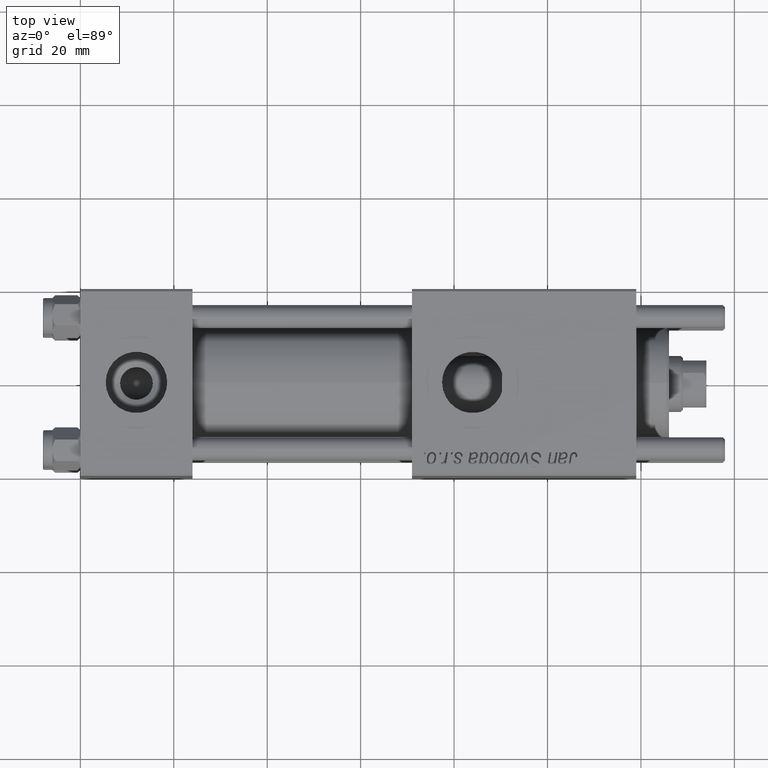
[diagram: clean part render]
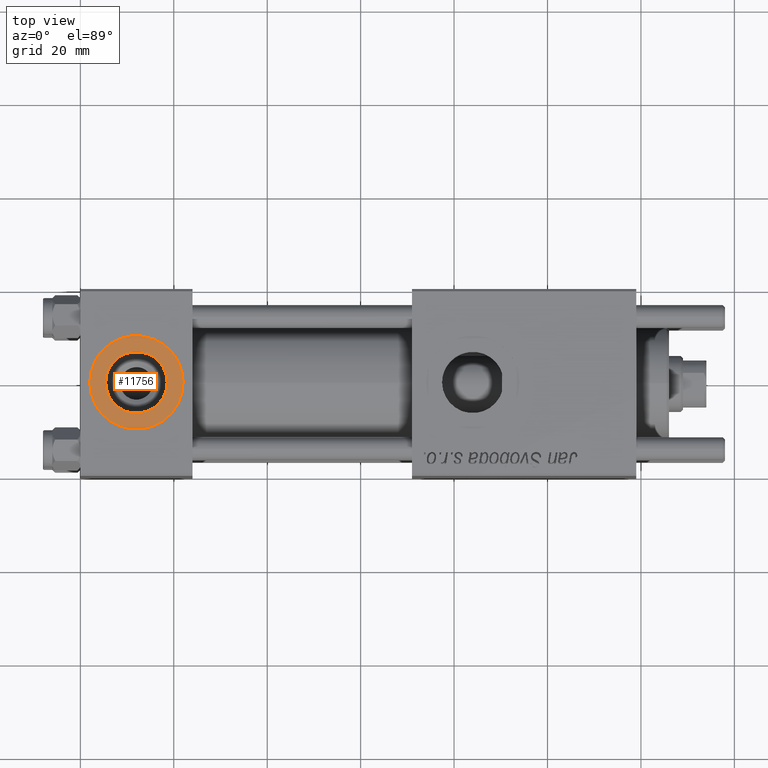
[diagram: same view with one face highlighted and labeled with its STEP entity id]
A machine part, top view. The second image highlights one B-rep face of the part: STEP entity #11756.
In plain terms, the highlighted planar face has unit normal (0, 0, 1).
Its self-contained STEP definition (entity closure, byte-faithful):
#418 = EDGE_CURVE ( 'NONE', #38565, #19439, #50567, .T. ) ;
#2024 = FACE_BOUND ( 'NONE', #30368, .T. ) ;
#3147 = EDGE_CURVE ( 'NONE', #31071, #15964, #41618, .T. ) ;
#5472 = EDGE_CURVE ( 'NONE', #19439, #38565, #48412, .T. ) ;
#5771 = CARTESIAN_POINT ( 'NONE',  ( 12.00000000000000000, 1.540743955509788682E-30, 19.79999999999999716 ) ) ;
#6056 = DIRECTION ( 'NONE',  ( 1.000000000000000000, 0.000000000000000000, -0.000000000000000000 ) ) ;
#8679 = CARTESIAN_POINT ( 'NONE',  ( 12.00000000000000000, 1.540743955509788682E-30, 19.79999999999999716 ) ) ;
#9592 = CIRCLE ( 'NONE', #12337, 6.579999999999999183 ) ;
#9893 = DIRECTION ( 'NONE',  ( 0.000000000000000000, 0.000000000000000000, 1.000000000000000000 ) ) ;
#10640 = CARTESIAN_POINT ( 'NONE',  ( 5.420000000000000817, 8.058175938389596335E-16, 19.79999999999999716 ) ) ;
#11756 = ADVANCED_FACE ( 'NONE', ( #2024, #45056 ), #27560, .T. ) ;
#12337 = AXIS2_PLACEMENT_3D ( 'NONE', #44623, #27404, #49213 ) ;
#14180 = AXIS2_PLACEMENT_3D ( 'NONE', #24216, #9893, #41415 ) ;
#15964 = VERTEX_POINT ( 'NONE', #10640 ) ;
#16230 = ORIENTED_EDGE ( 'NONE', *, *, #3147, .F. ) ;
#19439 = VERTEX_POINT ( 'NONE', #21807 ) ;
#19900 = CARTESIAN_POINT ( 'NONE',  ( 18.57999999999999829, 1.540743955509788682E-30, 19.79999999999999716 ) ) ;
#21807 = CARTESIAN_POINT ( 'NONE',  ( 2.000000000000003553, 1.224646799147354440E-15, 19.79999999999999716 ) ) ;
#21848 = DIRECTION ( 'NONE',  ( 0.000000000000000000, 0.000000000000000000, 1.000000000000000000 ) ) ;
#24216 = CARTESIAN_POINT ( 'NONE',  ( 12.00000000000000000, 1.540743955509788682E-30, 19.79999999999999716 ) ) ;
#25514 = AXIS2_PLACEMENT_3D ( 'NONE', #41650, #37064, #49981 ) ;
#26789 = ORIENTED_EDGE ( 'NONE', *, *, #34993, .F. ) ;
#27404 = DIRECTION ( 'NONE',  ( 0.000000000000000000, 0.000000000000000000, 1.000000000000000000 ) ) ;
#27560 = PLANE ( 'NONE',  #52225 ) ;
#28409 = DIRECTION ( 'NONE',  ( 0.000000000000000000, 0.000000000000000000, 1.000000000000000000 ) ) ;
#30368 = EDGE_LOOP ( 'NONE', ( #16230, #26789 ) ) ;
#31071 = VERTEX_POINT ( 'NONE', #19900 ) ;
#33270 = ORIENTED_EDGE ( 'NONE', *, *, #418, .T. ) ;
#34993 = EDGE_CURVE ( 'NONE', #15964, #31071, #9592, .T. ) ;
#37064 = DIRECTION ( 'NONE',  ( 0.000000000000000000, 0.000000000000000000, 1.000000000000000000 ) ) ;
#38565 = VERTEX_POINT ( 'NONE', #45046 ) ;
#39056 = DIRECTION ( 'NONE',  ( 1.000000000000000000, 0.000000000000000000, 0.000000000000000000 ) ) ;
#41415 = DIRECTION ( 'NONE',  ( 1.000000000000000000, 0.000000000000000000, 0.000000000000000000 ) ) ;
#41618 = CIRCLE ( 'NONE', #14180, 6.579999999999999183 ) ;
#41650 = CARTESIAN_POINT ( 'NONE',  ( 12.00000000000000000, 1.540743955509788682E-30, 19.79999999999999716 ) ) ;
#44623 = CARTESIAN_POINT ( 'NONE',  ( 12.00000000000000000, 1.540743955509788682E-30, 19.79999999999999716 ) ) ;
#45046 = CARTESIAN_POINT ( 'NONE',  ( 22.00000000000000000, 1.540743955509788682E-30, 19.79999999999999716 ) ) ;
#45056 = FACE_OUTER_BOUND ( 'NONE', #56415, .T. ) ;
#48073 = ORIENTED_EDGE ( 'NONE', *, *, #5472, .T. ) ;
#48412 = CIRCLE ( 'NONE', #25514, 9.999999999999998224 ) ;
#49213 = DIRECTION ( 'NONE',  ( 1.000000000000000000, 0.000000000000000000, 0.000000000000000000 ) ) ;
#49981 = DIRECTION ( 'NONE',  ( 1.000000000000000000, 0.000000000000000000, 0.000000000000000000 ) ) ;
#50567 = CIRCLE ( 'NONE', #55146, 9.999999999999998224 ) ;
#52225 = AXIS2_PLACEMENT_3D ( 'NONE', #5771, #28409, #6056 ) ;
#55146 = AXIS2_PLACEMENT_3D ( 'NONE', #8679, #21848, #39056 ) ;
#56415 = EDGE_LOOP ( 'NONE', ( #33270, #48073 ) ) ;